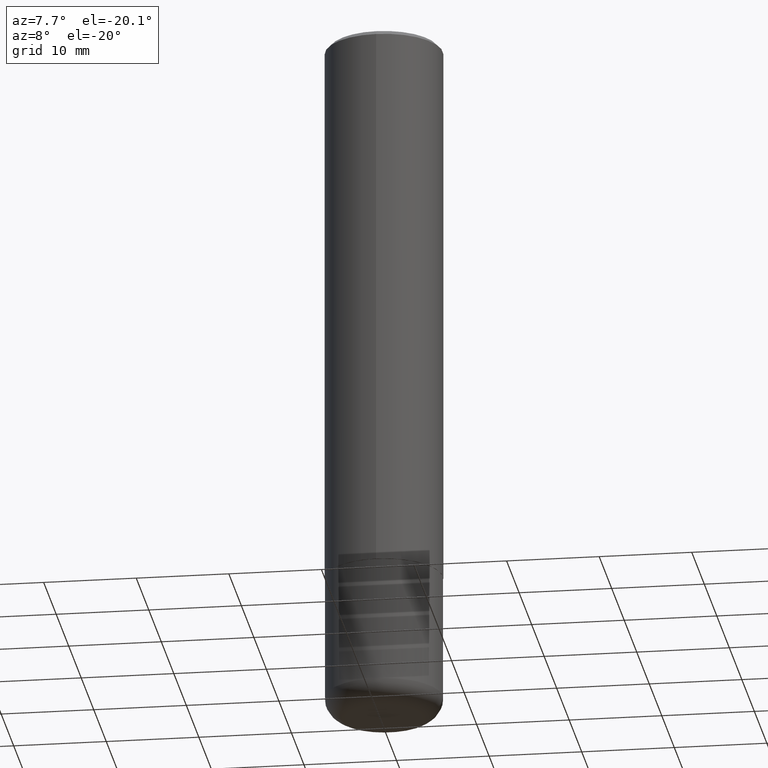
[diagram: clean part render]
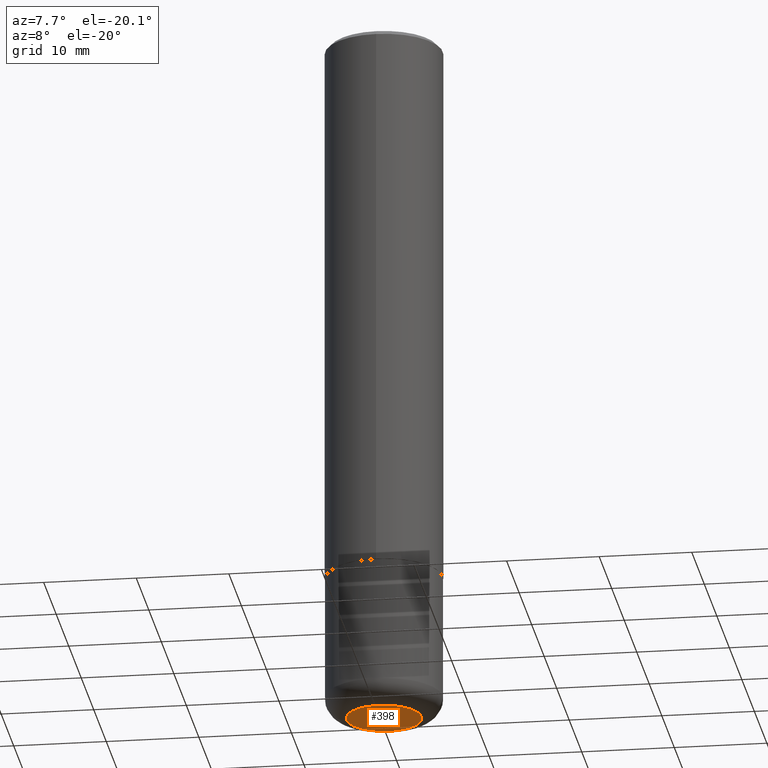
[diagram: same view with one face highlighted and labeled with its STEP entity id]
A machine part, auxiliary view. The second image highlights one B-rep face of the part: STEP entity #398.
In plain terms, the highlighted planar face has unit normal (0, -0, -1).
Its self-contained STEP definition (entity closure, byte-faithful):
#35 = EDGE_CURVE ( 'NONE', #392, #389, #248, .T. ) ;
#45 = AXIS2_PLACEMENT_3D ( 'NONE', #323, #198, #291 ) ;
#86 = ORIENTED_EDGE ( 'NONE', *, *, #255, .F. ) ;
#97 = DIRECTION ( 'NONE',  ( 1.000000000000000000, -6.982962677686271444E-15, 0.000000000000000000 ) ) ;
#120 = CARTESIAN_POINT ( 'NONE',  ( 7.336406418555408669E-29, -1.047444401652943478E-14, -2.999999999999999556 ) ) ;
#122 = DIRECTION ( 'NONE',  ( -2.445468806185136597E-29, 3.491481338843145583E-15, 1.000000000000000000 ) ) ;
#150 = CIRCLE ( 'NONE', #340, 0.1600000000000000033 ) ;
#165 = PLANE ( 'NONE',  #45 ) ;
#168 = CARTESIAN_POINT ( 'NONE',  ( 0.1600000000000000033, -1.159171804495923808E-14, -2.999999999999999556 ) ) ;
#189 = EDGE_LOOP ( 'NONE', ( #86, #317 ) ) ;
#198 = DIRECTION ( 'NONE',  ( 2.438088387897960049E-29, -3.491481338843145188E-15, -1.000000000000000000 ) ) ;
#230 = FACE_OUTER_BOUND ( 'NONE', #189, .T. ) ;
#248 = CIRCLE ( 'NONE', #257, 0.1600000000000000033 ) ;
#255 = EDGE_CURVE ( 'NONE', #389, #392, #150, .T. ) ;
#257 = AXIS2_PLACEMENT_3D ( 'NONE', #120, #269, #341 ) ;
#269 = DIRECTION ( 'NONE',  ( -2.445468806185136597E-29, 3.491481338843145583E-15, 1.000000000000000000 ) ) ;
#291 = DIRECTION ( 'NONE',  ( -1.000000000000000000, 6.982962677686265922E-15, -4.876176775795935793E-29 ) ) ;
#292 = CARTESIAN_POINT ( 'NONE',  ( -0.1600000000000000033, -8.860714747973291991E-15, -2.999999999999999556 ) ) ;
#304 = CARTESIAN_POINT ( 'NONE',  ( 7.336406418555408669E-29, -1.047444401652943478E-14, -2.999999999999999556 ) ) ;
#317 = ORIENTED_EDGE ( 'NONE', *, *, #35, .F. ) ;
#323 = CARTESIAN_POINT ( 'NONE',  ( 1.449005363638152099E-28, -2.300140402884597367E-16, -2.999999999999999556 ) ) ;
#340 = AXIS2_PLACEMENT_3D ( 'NONE', #304, #122, #97 ) ;
#341 = DIRECTION ( 'NONE',  ( 1.000000000000000000, -6.982962677686271444E-15, 0.000000000000000000 ) ) ;
#389 = VERTEX_POINT ( 'NONE', #168 ) ;
#392 = VERTEX_POINT ( 'NONE', #292 ) ;
#398 = ADVANCED_FACE ( 'NONE', ( #230 ), #165, .T. ) ;